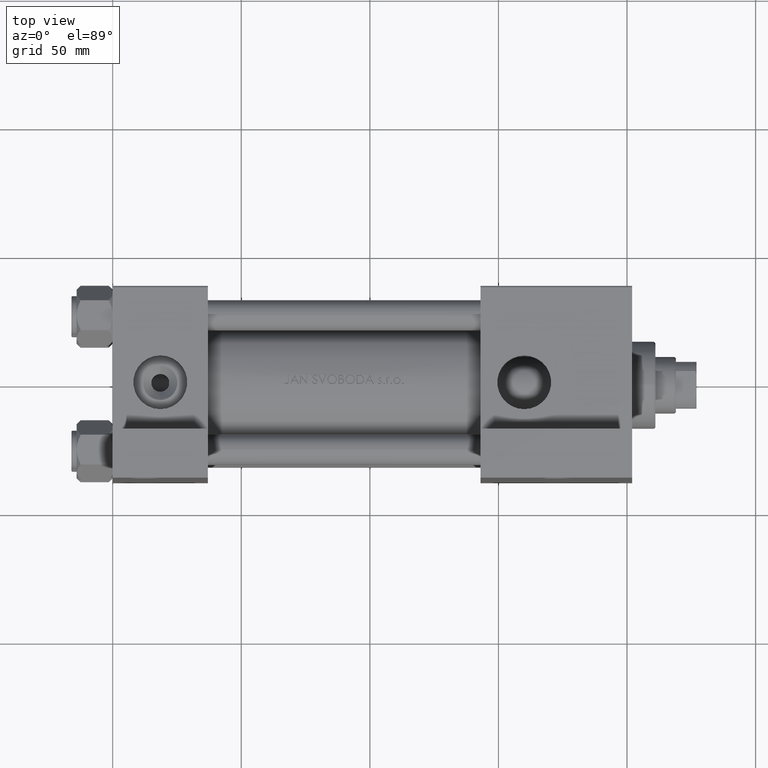
[diagram: clean part render]
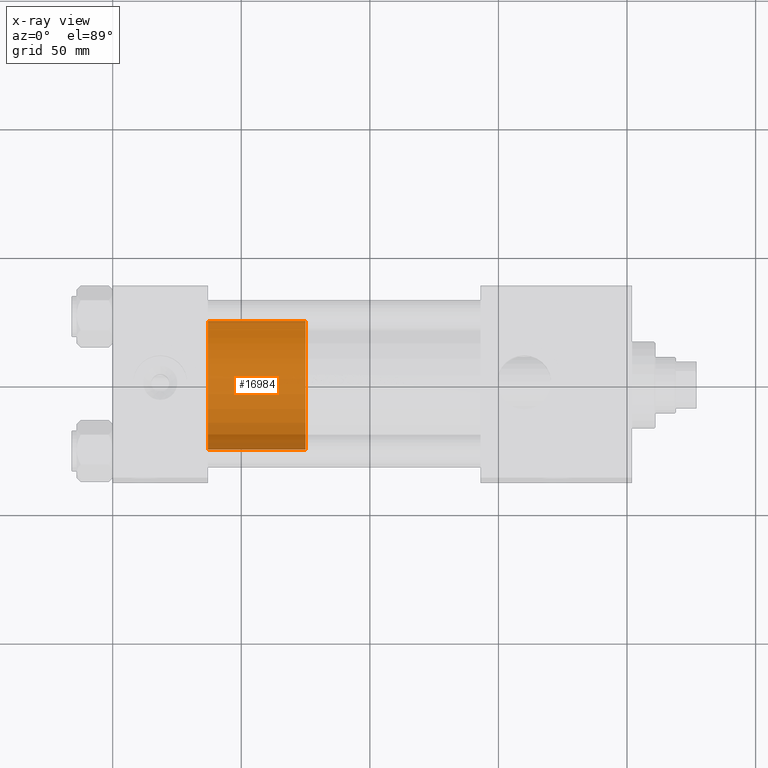
[diagram: x-ray — body ghosted, one internal face saturated and labeled with its STEP entity id]
A machine part, top view, then the same camera in x-ray: the body is ghosted and one INTERNAL B-rep face — a face not visible from any outside direction — is saturated and labeled: STEP entity #16984.
In plain terms, the highlighted cylindrical surface (partial cylindrical patch) has radius 25 mm, axis along (-1, 0, 0).
Its self-contained STEP definition (entity closure, byte-faithful):
#813 = CARTESIAN_POINT ( 'NONE',  ( -25.00000000000000000, 0.000000000000000000, 0.000000000000000000 ) ) ;
#3716 = VERTEX_POINT ( 'NONE', #5282 ) ;
#4084 = EDGE_CURVE ( 'NONE', #16439, #46455, #17858, .T. ) ;
#5282 = CARTESIAN_POINT ( 'NONE',  ( -25.00000000000000000, 0.000000000000000000, 38.00000000000000000 ) ) ;
#5371 = CARTESIAN_POINT ( 'NONE',  ( 0.000000000000000000, 0.000000000000000000, 38.00000000000000000 ) ) ;
#6925 = AXIS2_PLACEMENT_3D ( 'NONE', #5371, #15444, #35752 ) ;
#8422 = CYLINDRICAL_SURFACE ( 'NONE', #44963, 25.00000000000000000 ) ;
#8668 = FACE_OUTER_BOUND ( 'NONE', #19855, .T. ) ;
#10622 = DIRECTION ( 'NONE',  ( -0.000000000000000000, -0.000000000000000000, -1.000000000000000000 ) ) ;
#11330 = CARTESIAN_POINT ( 'NONE',  ( -25.00000000000000000, 0.000000000000000000, 38.00000000000000000 ) ) ;
#14806 = CIRCLE ( 'NONE', #35447, 25.00000000000000000 ) ;
#15097 = EDGE_CURVE ( 'NONE', #3716, #46442, #45452, .T. ) ;
#15444 = DIRECTION ( 'NONE',  ( 0.000000000000000000, 0.000000000000000000, 1.000000000000000000 ) ) ;
#16439 = VERTEX_POINT ( 'NONE', #41126 ) ;
#16655 = CARTESIAN_POINT ( 'NONE',  ( 0.000000000000000000, 0.000000000000000000, 38.00000000000000000 ) ) ;
#16984 = ADVANCED_FACE ( 'NONE', ( #8668 ), #8422, .T. ) ;
#17858 = LINE ( 'NONE', #19091, #37555 ) ;
#19024 = DIRECTION ( 'NONE',  ( 1.000000000000000000, 0.000000000000000000, 0.000000000000000000 ) ) ;
#19091 = CARTESIAN_POINT ( 'NONE',  ( 25.00000000000000000, 3.061616997868383043E-15, 38.00000000000000000 ) ) ;
#19855 = EDGE_LOOP ( 'NONE', ( #44063, #32108, #39441, #24471 ) ) ;
#22456 = EDGE_CURVE ( 'NONE', #46455, #46442, #14806, .T. ) ;
#23511 = CARTESIAN_POINT ( 'NONE',  ( 0.000000000000000000, 0.000000000000000000, 0.000000000000000000 ) ) ;
#24471 = ORIENTED_EDGE ( 'NONE', *, *, #15097, .F. ) ;
#25313 = EDGE_CURVE ( 'NONE', #16439, #3716, #37933, .T. ) ;
#28709 = CARTESIAN_POINT ( 'NONE',  ( 25.00000000000000000, 3.061616997868383043E-15, 0.000000000000000000 ) ) ;
#32108 = ORIENTED_EDGE ( 'NONE', *, *, #4084, .T. ) ;
#35447 = AXIS2_PLACEMENT_3D ( 'NONE', #23511, #42420, #19024 ) ;
#35752 = DIRECTION ( 'NONE',  ( 1.000000000000000000, 0.000000000000000000, 0.000000000000000000 ) ) ;
#37555 = VECTOR ( 'NONE', #10622, 1000.000000000000000 ) ;
#37933 = CIRCLE ( 'NONE', #6925, 25.00000000000000000 ) ;
#38209 = DIRECTION ( 'NONE',  ( -0.000000000000000000, -0.000000000000000000, -1.000000000000000000 ) ) ;
#39302 = DIRECTION ( 'NONE',  ( -0.000000000000000000, -0.000000000000000000, -1.000000000000000000 ) ) ;
#39441 = ORIENTED_EDGE ( 'NONE', *, *, #22456, .T. ) ;
#41126 = CARTESIAN_POINT ( 'NONE',  ( 25.00000000000000000, 3.061616997868383043E-15, 38.00000000000000000 ) ) ;
#42420 = DIRECTION ( 'NONE',  ( 0.000000000000000000, 0.000000000000000000, 1.000000000000000000 ) ) ;
#44063 = ORIENTED_EDGE ( 'NONE', *, *, #25313, .F. ) ;
#44963 = AXIS2_PLACEMENT_3D ( 'NONE', #16655, #39302, #47279 ) ;
#45452 = LINE ( 'NONE', #11330, #48869 ) ;
#46442 = VERTEX_POINT ( 'NONE', #813 ) ;
#46455 = VERTEX_POINT ( 'NONE', #28709 ) ;
#47279 = DIRECTION ( 'NONE',  ( -1.000000000000000000, 0.000000000000000000, 0.000000000000000000 ) ) ;
#48869 = VECTOR ( 'NONE', #38209, 1000.000000000000000 ) ;